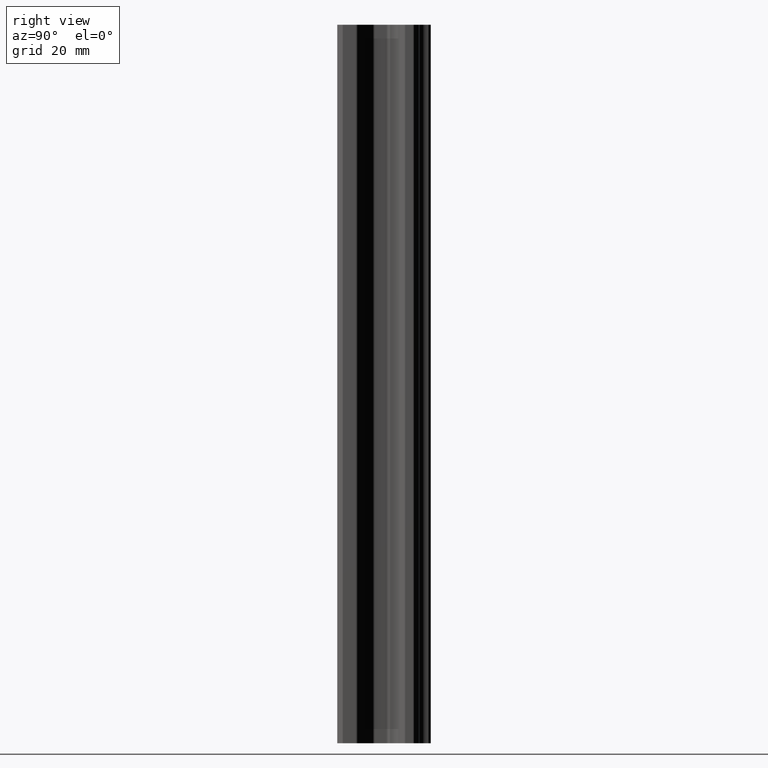
[diagram: clean part render]
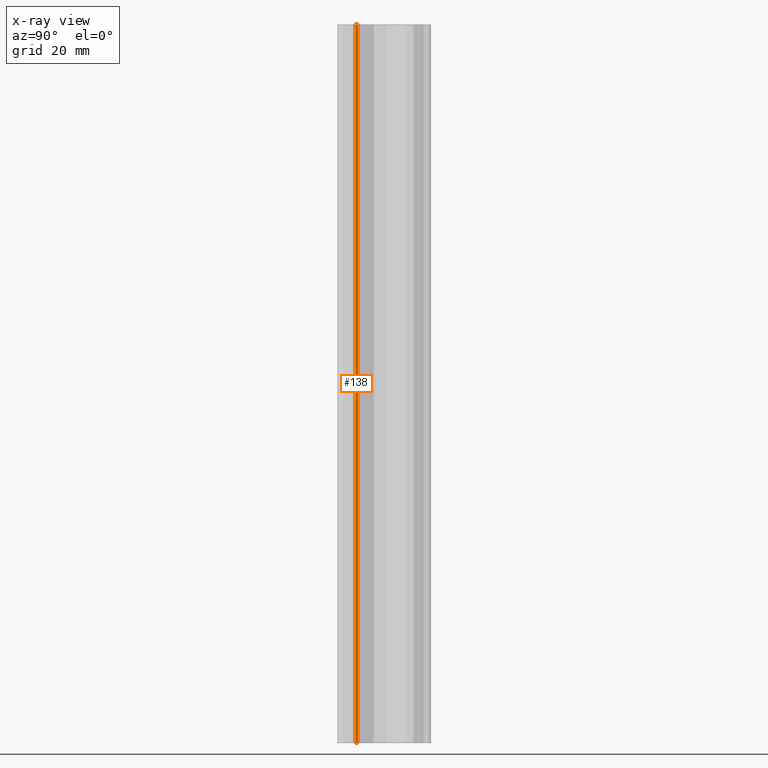
[diagram: x-ray — body ghosted, one internal face saturated and labeled with its STEP entity id]
A machine part, right view, then the same camera in x-ray: the body is ghosted and one INTERNAL B-rep face — a face not visible from any outside direction — is saturated and labeled: STEP entity #138.
In plain terms, the highlighted cylindrical surface (edge-blend (fillet) strip) has radius 0.8 mm, axis along (0, 0, 1).
Its self-contained STEP definition (entity closure, byte-faithful):
#114 = ORIENTED_EDGE ( 'NONE', *, *, #118, .T. ) ;
#118 = EDGE_CURVE ( 'NONE', #210, #159, #703, .T. ) ;
#138 = ADVANCED_FACE ( 'NONE', ( #721 ), #720, .T. ) ;
#142 = EDGE_LOOP ( 'NONE', ( #150, #195, #186, #114 ) ) ;
#150 = ORIENTED_EDGE ( 'NONE', *, *, #162, .F. ) ;
#158 = VERTEX_POINT ( 'NONE', #756 ) ;
#159 = VERTEX_POINT ( 'NONE', #750 ) ;
#162 = EDGE_CURVE ( 'NONE', #158, #159, #805, .T. ) ;
#186 = ORIENTED_EDGE ( 'NONE', *, *, #207, .F. ) ;
#195 = ORIENTED_EDGE ( 'NONE', *, *, #218, .T. ) ;
#196 = VERTEX_POINT ( 'NONE', #870 ) ;
#207 = EDGE_CURVE ( 'NONE', #210, #196, #850, .T. ) ;
#210 = VERTEX_POINT ( 'NONE', #906 ) ;
#218 = EDGE_CURVE ( 'NONE', #158, #196, #890, .T. ) ;
#699 = DIRECTION ( 'NONE',  ( 1.000000000000000000, -4.336808689942015400E-015, 0.0000000000000000000 ) ) ;
#700 = DIRECTION ( 'NONE',  ( 0.0000000000000000000, 0.0000000000000000000, -1.000000000000000000 ) ) ;
#701 = CARTESIAN_POINT ( 'NONE',  ( -13.19999999999999900, -20.89027119516000000, 100.0000000000000000 ) ) ;
#702 = AXIS2_PLACEMENT_3D ( 'NONE', #701, #700, #699 ) ;
#703 = CIRCLE ( 'NONE', #702, 0.8000000000000003800 ) ;
#715 = DIRECTION ( 'NONE',  ( 0.0000000000000000000, 0.0000000000000000000, 1.000000000000000000 ) ) ;
#716 = CARTESIAN_POINT ( 'NONE',  ( -13.19999999999999900, -20.89027119516000000, -100.0000000000000000 ) ) ;
#717 = AXIS2_PLACEMENT_3D ( 'NONE', #716, #715, #2170 ) ;
#720 = CYLINDRICAL_SURFACE ( 'NONE', #717, 0.8000000000000003800 ) ;
#721 = FACE_OUTER_BOUND ( 'NONE', #142, .T. ) ;
#750 = CARTESIAN_POINT ( 'NONE',  ( -13.76568542495043300, -20.32458577020963000, 100.0000000000000000 ) ) ;
#756 = CARTESIAN_POINT ( 'NONE',  ( -13.76568542495043300, -20.32458577020963000, -100.0000000000000000 ) ) ;
#802 = DIRECTION ( 'NONE',  ( 0.0000000000000000000, 0.0000000000000000000, 1.000000000000000000 ) ) ;
#803 = VECTOR ( 'NONE', #802, 1000.000000000000000 ) ;
#804 = CARTESIAN_POINT ( 'NONE',  ( -13.76568542495079900, -20.32458577020920000, -100.0000000000000000 ) ) ;
#805 = LINE ( 'NONE', #804, #803 ) ;
#847 = DIRECTION ( 'NONE',  ( 0.0000000000000000000, 0.0000000000000000000, -1.000000000000000000 ) ) ;
#848 = VECTOR ( 'NONE', #847, 1000.000000000000000 ) ;
#849 = CARTESIAN_POINT ( 'NONE',  ( -14.00000000000000000, -20.89027119516000000, -100.0000000000000000 ) ) ;
#850 = LINE ( 'NONE', #849, #848 ) ;
#870 = CARTESIAN_POINT ( 'NONE',  ( -14.00000000000000000, -20.89027119516000000, -100.0000000000000000 ) ) ;
#886 = DIRECTION ( 'NONE',  ( 1.000000000000000000, 0.0000000000000000000, 0.0000000000000000000 ) ) ;
#887 = DIRECTION ( 'NONE',  ( 0.0000000000000000000, 0.0000000000000000000, 1.000000000000000000 ) ) ;
#888 = CARTESIAN_POINT ( 'NONE',  ( -13.19999999999999900, -20.89027119516000000, -100.0000000000000000 ) ) ;
#889 = AXIS2_PLACEMENT_3D ( 'NONE', #888, #887, #886 ) ;
#890 = CIRCLE ( 'NONE', #889, 0.8000000000000003800 ) ;
#906 = CARTESIAN_POINT ( 'NONE',  ( -14.00000000000000000, -20.89027119516000000, 100.0000000000000000 ) ) ;
#2170 = DIRECTION ( 'NONE',  ( 1.000000000000000000, 0.0000000000000000000, 0.0000000000000000000 ) ) ;